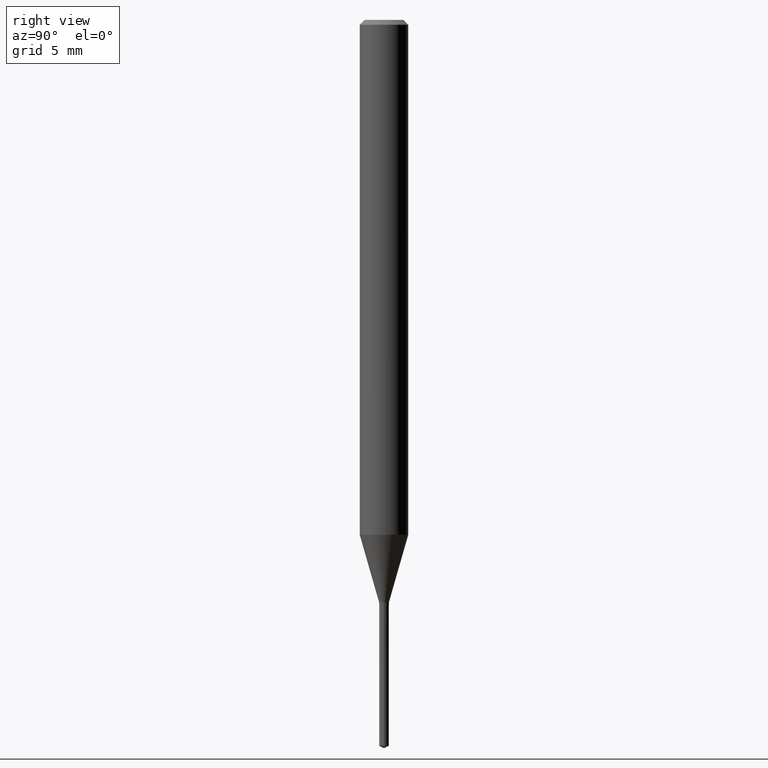
[diagram: clean part render]
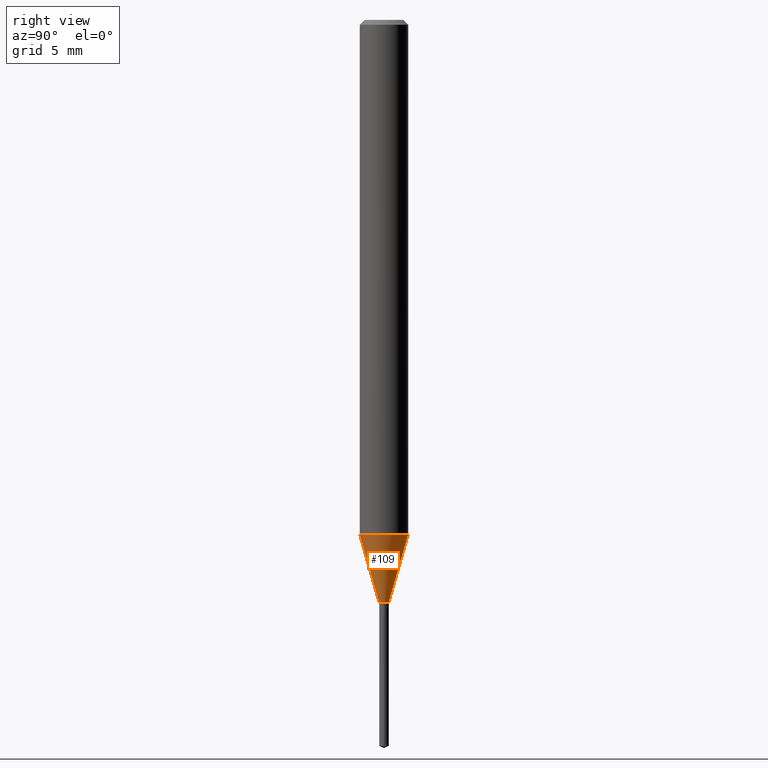
[diagram: same view with one face highlighted and labeled with its STEP entity id]
A machine part, right view. The second image highlights one B-rep face of the part: STEP entity #109.
In plain terms, the highlighted conical surface has half-angle 16.003 deg.
Its self-contained STEP definition (entity closure, byte-faithful):
#91=VERTEX_POINT('',#226);
#93=VERTEX_POINT('',#228);
#107=VERTEX_POINT('',#244);
#109=ADVANCED_FACE('',(#246),#247,.T.);
#129=EDGE_CURVE('',#91,#93,#272,.T.);
#139=EDGE_CURVE('',#163,#91,#283,.T.);
#151=EDGE_CURVE('',#107,#163,#296,.T.);
#159=EDGE_CURVE('',#107,#93,#304,.T.);
#163=VERTEX_POINT('',#308);
#226=CARTESIAN_POINT('',(3.67381906146713E-017,-0.3,-35.9991339745962));
#228=CARTESIAN_POINT('',(1.83690953073357E-016,-1.5,-31.815));
#244=CARTESIAN_POINT('',(0.0,1.5,-31.815));
#246=FACE_OUTER_BOUND('',#391,.T.);
#247=CONICAL_SURFACE('',#392,0.9,0.279301019176269);
#272=LINE('',#422,#423);
#283=CIRCLE('',#440,0.3);
#296=LINE('',#457,#458);
#304=CIRCLE('',#470,1.5);
#308=CARTESIAN_POINT('',(0.0,0.3,-35.9991339745962));
#391=EDGE_LOOP('',(#556,#557,#558,#559));
#392=AXIS2_PLACEMENT_3D('',#560,#561,#562);
#422=CARTESIAN_POINT('',(1.10214571844014E-016,-0.9,-33.9070669872981));
#423=VECTOR('',#608,1.0);
#440=AXIS2_PLACEMENT_3D('',#620,#621,#622);
#457=CARTESIAN_POINT('',(-1.10214571844014E-016,0.9,-33.9070669872981));
#458=VECTOR('',#634,1.0);
#470=AXIS2_PLACEMENT_3D('',#639,#640,#641);
#556=ORIENTED_EDGE('',*,*,#151,.F.);
#557=ORIENTED_EDGE('',*,*,#159,.T.);
#558=ORIENTED_EDGE('',*,*,#129,.F.);
#559=ORIENTED_EDGE('',*,*,#139,.F.);
#560=CARTESIAN_POINT('',(0.0,0.0,-33.9070669872981));
#561=DIRECTION('',(-0.0,-0.0,1.0));
#562=DIRECTION('',(0.0,1.0,0.0));
#608=DIRECTION('',(3.37604159806123E-017,-0.275683821786777,0.961248370820485));
#620=CARTESIAN_POINT('',(0.0,0.0,-35.9991339745962));
#621=DIRECTION('',(0.0,0.0,-1.0));
#622=DIRECTION('',(0.0,1.0,0.0));
#634=DIRECTION('',(3.37604159806123E-017,-0.275683821786777,-0.961248370820485));
#639=CARTESIAN_POINT('',(0.0,0.0,-31.815));
#640=DIRECTION('',(0.0,0.0,-1.0));
#641=DIRECTION('',(0.0,1.0,0.0));